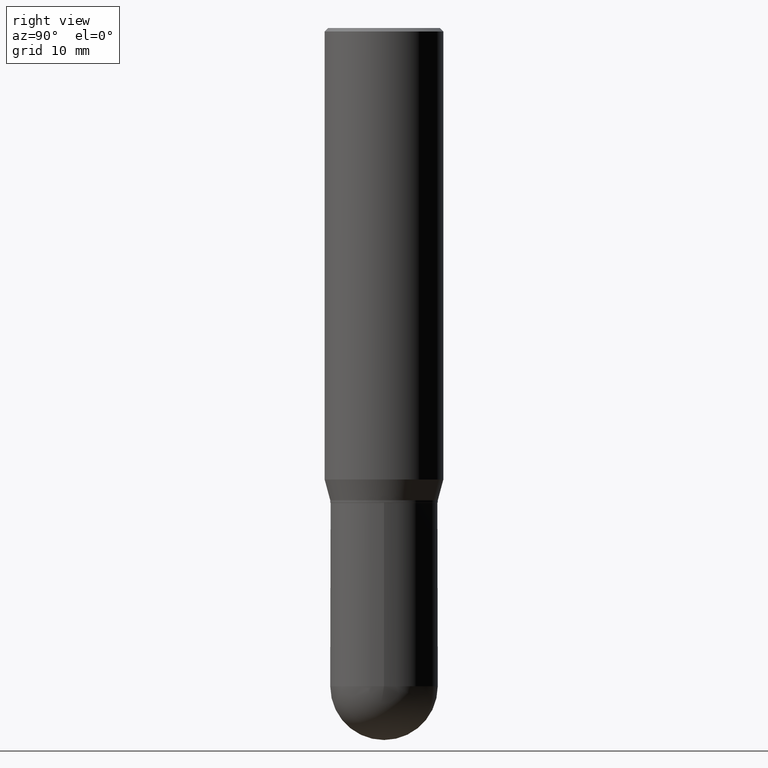
[diagram: clean part render]
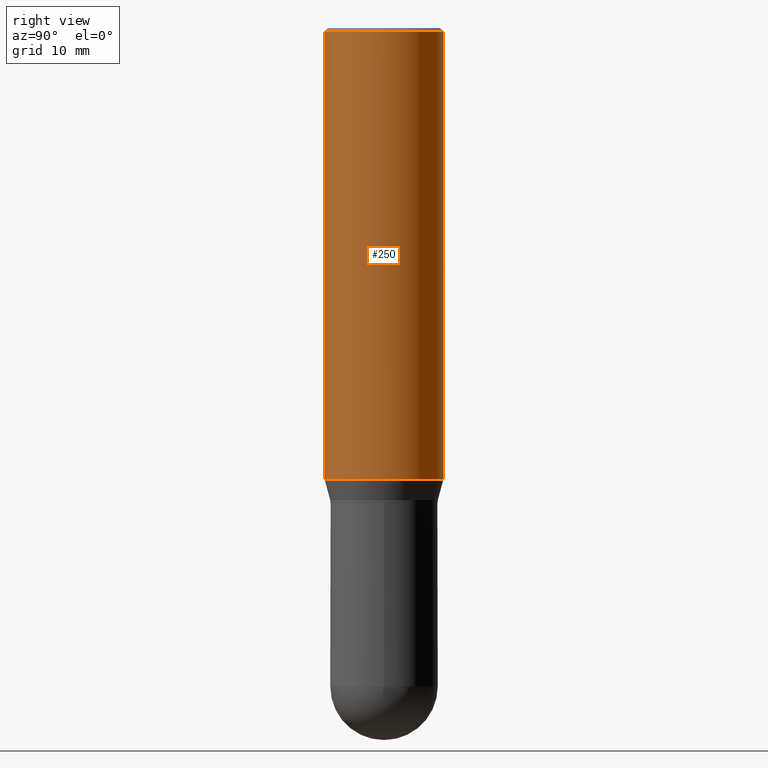
[diagram: same view with one face highlighted and labeled with its STEP entity id]
A machine part, right view. The second image highlights one B-rep face of the part: STEP entity #250.
In plain terms, the highlighted cylindrical surface (partial cylindrical patch) has radius 6.35 mm, axis along (-0, 0, 1).
Its self-contained STEP definition (entity closure, byte-faithful):
#12 = CARTESIAN_POINT ( 'NONE',  ( 1.776356839400296613E-15, 0.2499999999999933664, -1.902483408562511302 ) ) ;
#18 = VERTEX_POINT ( 'NONE', #406 ) ;
#25 = CARTESIAN_POINT ( 'NONE',  ( 0.000000000000000000, 0.000000000000000000, 0.000000000000000000 ) ) ;
#53 = DIRECTION ( 'NONE',  ( -6.982962677686265922E-15, -1.000000000000000000, 3.491643216902136408E-15 ) ) ;
#67 = VERTEX_POINT ( 'NONE', #268 ) ;
#122 = EDGE_LOOP ( 'NONE', ( #271, #432, #483, #363 ) ) ;
#127 = VERTEX_POINT ( 'NONE', #490 ) ;
#187 = CYLINDRICAL_SURFACE ( 'NONE', #391, 0.2500000000000000000 ) ;
#191 = CARTESIAN_POINT ( 'NONE',  ( -1.745740669421566480E-15, -0.2500000000000000000, 8.728399387199132499E-16 ) ) ;
#194 = DIRECTION ( 'NONE',  ( -2.445553707813064024E-29, 3.491359754879653000E-15, 1.000000000000000000 ) ) ;
#212 = EDGE_CURVE ( 'NONE', #499, #127, #377, .T. ) ;
#213 = AXIS2_PLACEMENT_3D ( 'NONE', #448, #452, #53 ) ;
#221 = EDGE_CURVE ( 'NONE', #67, #18, #341, .T. ) ;
#224 = CIRCLE ( 'NONE', #293, 0.2500000000000000000 ) ;
#228 = DIRECTION ( 'NONE',  ( -6.982962677686265922E-15, -1.000000000000000000, 3.278217592397115862E-15 ) ) ;
#250 = ADVANCED_FACE ( 'NONE', ( #469 ), #187, .T. ) ;
#262 = DIRECTION ( 'NONE',  ( -6.982962677686265922E-15, -1.000000000000000000, 3.491359754879653000E-15 ) ) ;
#268 = CARTESIAN_POINT ( 'NONE',  ( -1.745740669421519543E-15, -0.2500000000000066058, -1.902483408562509748 ) ) ;
#271 = ORIENTED_EDGE ( 'NONE', *, *, #292, .T. ) ;
#289 = CIRCLE ( 'NONE', #213, 0.2500000000000000000 ) ;
#292 = EDGE_CURVE ( 'NONE', #67, #499, #224, .T. ) ;
#293 = AXIS2_PLACEMENT_3D ( 'NONE', #509, #194, #228 ) ;
#314 = EDGE_CURVE ( 'NONE', #18, #127, #289, .T. ) ;
#341 = LINE ( 'NONE', #191, #419 ) ;
#363 = ORIENTED_EDGE ( 'NONE', *, *, #221, .F. ) ;
#377 = LINE ( 'NONE', #497, #444 ) ;
#386 = DIRECTION ( 'NONE',  ( -2.445553707813064024E-29, 3.491359754879653000E-15, 1.000000000000000000 ) ) ;
#391 = AXIS2_PLACEMENT_3D ( 'NONE', #25, #386, #262 ) ;
#406 = CARTESIAN_POINT ( 'NONE',  ( -1.745740669421565889E-15, -0.2500000000000000555, -0.01499999999999922923 ) ) ;
#419 = VECTOR ( 'NONE', #501, 39.37007874015748143 ) ;
#432 = ORIENTED_EDGE ( 'NONE', *, *, #212, .T. ) ;
#444 = VECTOR ( 'NONE', #463, 39.37007874015748143 ) ;
#448 = CARTESIAN_POINT ( 'NONE',  ( 3.668330561719621031E-31, -5.237039632319515294E-17, -0.01500000000000010179 ) ) ;
#452 = DIRECTION ( 'NONE',  ( -2.445553707813064024E-29, 3.491359754879653000E-15, 1.000000000000000000 ) ) ;
#463 = DIRECTION ( 'NONE',  ( -2.445553707813064024E-29, 3.491359754879653000E-15, 1.000000000000000000 ) ) ;
#469 = FACE_OUTER_BOUND ( 'NONE', #122, .T. ) ;
#483 = ORIENTED_EDGE ( 'NONE', *, *, #314, .F. ) ;
#490 = CARTESIAN_POINT ( 'NONE',  ( 1.776356839400297007E-15, 0.2499999999999999167, -0.01500000000000097609 ) ) ;
#497 = CARTESIAN_POINT ( 'NONE',  ( 1.776356839400250267E-15, 0.2500000000000000000, -8.728399387199132499E-16 ) ) ;
#499 = VERTEX_POINT ( 'NONE', #12 ) ;
#501 = DIRECTION ( 'NONE',  ( -2.445553707813064024E-29, 3.491359754879653000E-15, 1.000000000000000000 ) ) ;
#509 = CARTESIAN_POINT ( 'NONE',  ( 4.652625353862883920E-29, -6.642254006981412972E-15, -1.902483408562510414 ) ) ;